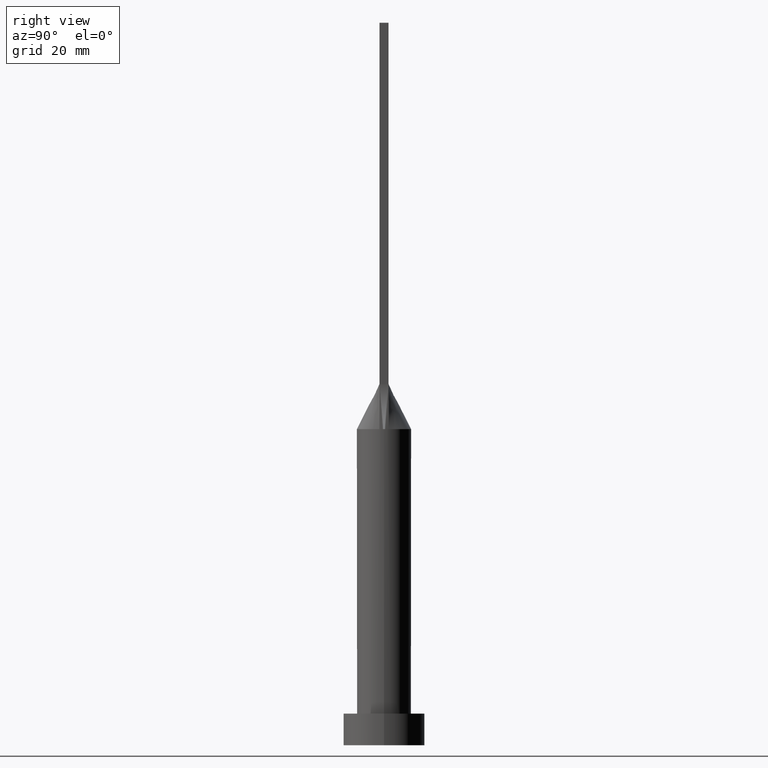
[diagram: clean part render]
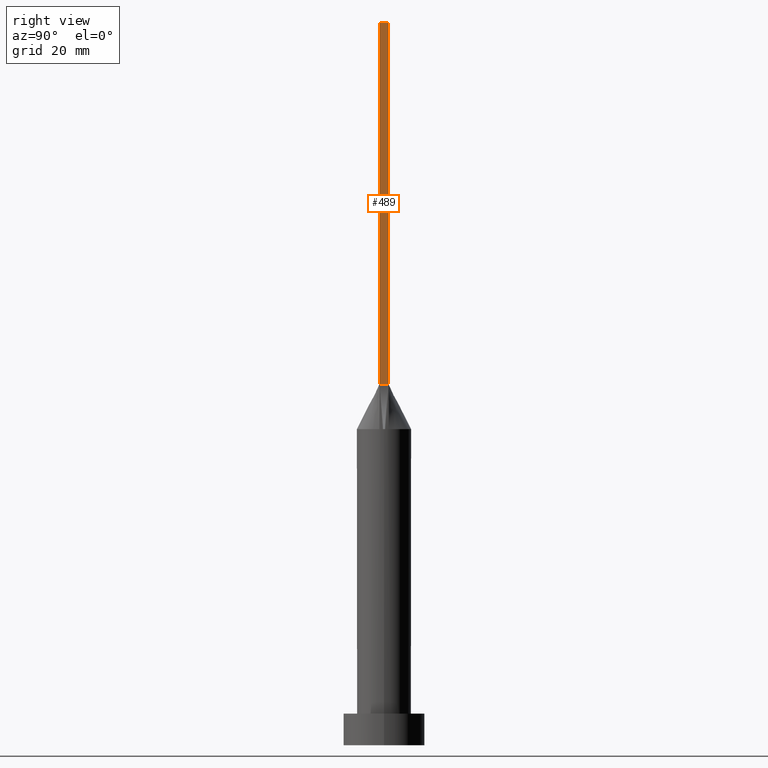
[diagram: same view with one face highlighted and labeled with its STEP entity id]
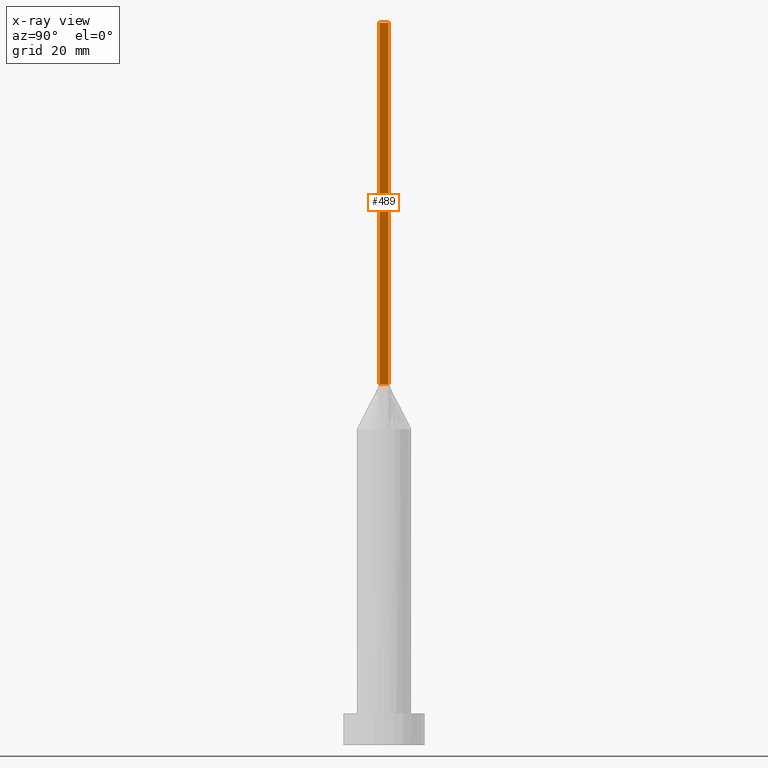
[diagram: x-ray of the same camera — body ghosted, the highlighted face saturated]
A machine part, right view. The second image highlights one B-rep face of the part: STEP entity #489.
The next image is the same camera in x-ray: the body ghosted, the highlighted face saturated — about 0% of this face is hidden behind the body in this view.
In plain terms, the highlighted planar face has unit normal (-1, 0, 0).
Its self-contained STEP definition (entity closure, byte-faithful):
#26 = CARTESIAN_POINT ( 'NONE',  ( 5.750000000000000000, -0.9999999999999997780, 80.00000000000000000 ) ) ;
#29 = CARTESIAN_POINT ( 'NONE',  ( 5.750000000000000000, 1.000000000000000000, 80.00000000000000000 ) ) ;
#36 = DIRECTION ( 'NONE',  ( -0.000000000000000000, -0.000000000000000000, -1.000000000000000000 ) ) ;
#60 = EDGE_CURVE ( 'NONE', #67, #507, #403, .T. ) ;
#67 = VERTEX_POINT ( 'NONE', #26 ) ;
#82 = CARTESIAN_POINT ( 'NONE',  ( 5.750000000000000000, -0.9999999999999997780, 160.0000000000000000 ) ) ;
#93 = LINE ( 'NONE', #131, #193 ) ;
#102 = VECTOR ( 'NONE', #198, 1000.000000000000000 ) ;
#107 = DIRECTION ( 'NONE',  ( 0.000000000000000000, 1.000000000000000000, 0.000000000000000000 ) ) ;
#131 = CARTESIAN_POINT ( 'NONE',  ( 5.750000000000000000, 1.000000000000000000, 160.0000000000000000 ) ) ;
#159 = ORIENTED_EDGE ( 'NONE', *, *, #616, .T. ) ;
#191 = EDGE_CURVE ( 'NONE', #586, #507, #93, .T. ) ;
#193 = VECTOR ( 'NONE', #36, 1000.000000000000000 ) ;
#194 = LINE ( 'NONE', #388, #102 ) ;
#198 = DIRECTION ( 'NONE',  ( -0.000000000000000000, -0.000000000000000000, -1.000000000000000000 ) ) ;
#211 = DIRECTION ( 'NONE',  ( -1.000000000000000000, 0.000000000000000000, 0.000000000000000000 ) ) ;
#214 = EDGE_LOOP ( 'NONE', ( #292, #503, #393, #159 ) ) ;
#259 = FACE_OUTER_BOUND ( 'NONE', #214, .T. ) ;
#272 = CARTESIAN_POINT ( 'NONE',  ( 5.750000000000000000, -0.9999999999999997780, 160.0000000000000000 ) ) ;
#292 = ORIENTED_EDGE ( 'NONE', *, *, #60, .T. ) ;
#310 = DIRECTION ( 'NONE',  ( -0.000000000000000000, 1.000000000000000000, -0.000000000000000000 ) ) ;
#325 = AXIS2_PLACEMENT_3D ( 'NONE', #82, #211, #412 ) ;
#370 = CARTESIAN_POINT ( 'NONE',  ( 5.750000000000000000, 1.000000000000000000, 160.0000000000000000 ) ) ;
#377 = EDGE_CURVE ( 'NONE', #415, #586, #587, .T. ) ;
#388 = CARTESIAN_POINT ( 'NONE',  ( 5.750000000000000000, -0.9999999999999997780, 160.0000000000000000 ) ) ;
#393 = ORIENTED_EDGE ( 'NONE', *, *, #377, .F. ) ;
#403 = LINE ( 'NONE', #604, #572 ) ;
#412 = DIRECTION ( 'NONE',  ( 0.000000000000000000, 0.000000000000000000, 1.000000000000000000 ) ) ;
#415 = VERTEX_POINT ( 'NONE', #272 ) ;
#421 = VECTOR ( 'NONE', #107, 1000.000000000000000 ) ;
#466 = PLANE ( 'NONE',  #325 ) ;
#489 = ADVANCED_FACE ( 'NONE', ( #259 ), #466, .F. ) ;
#503 = ORIENTED_EDGE ( 'NONE', *, *, #191, .F. ) ;
#507 = VERTEX_POINT ( 'NONE', #29 ) ;
#541 = CARTESIAN_POINT ( 'NONE',  ( 5.750000000000000000, -0.9999999999999997780, 160.0000000000000000 ) ) ;
#572 = VECTOR ( 'NONE', #310, 1000.000000000000000 ) ;
#586 = VERTEX_POINT ( 'NONE', #370 ) ;
#587 = LINE ( 'NONE', #541, #421 ) ;
#604 = CARTESIAN_POINT ( 'NONE',  ( 5.750000000000000000, 1.000000000000000000, 80.00000000000000000 ) ) ;
#616 = EDGE_CURVE ( 'NONE', #415, #67, #194, .T. ) ;